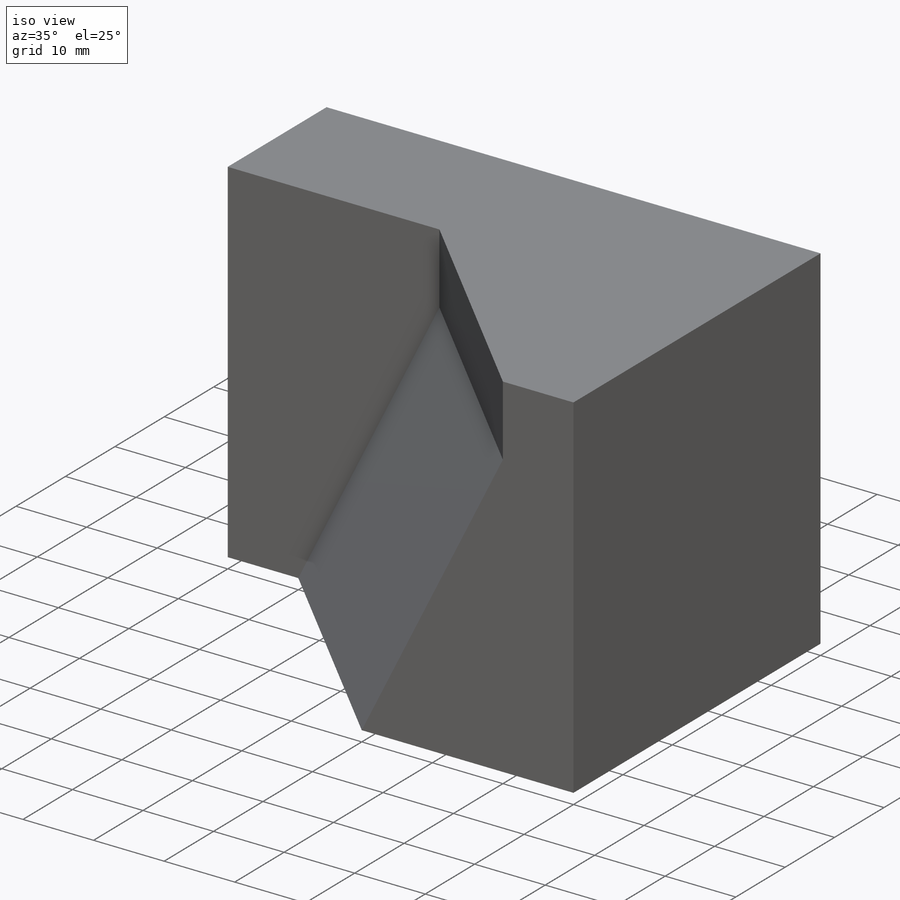
[diagram: iso view]
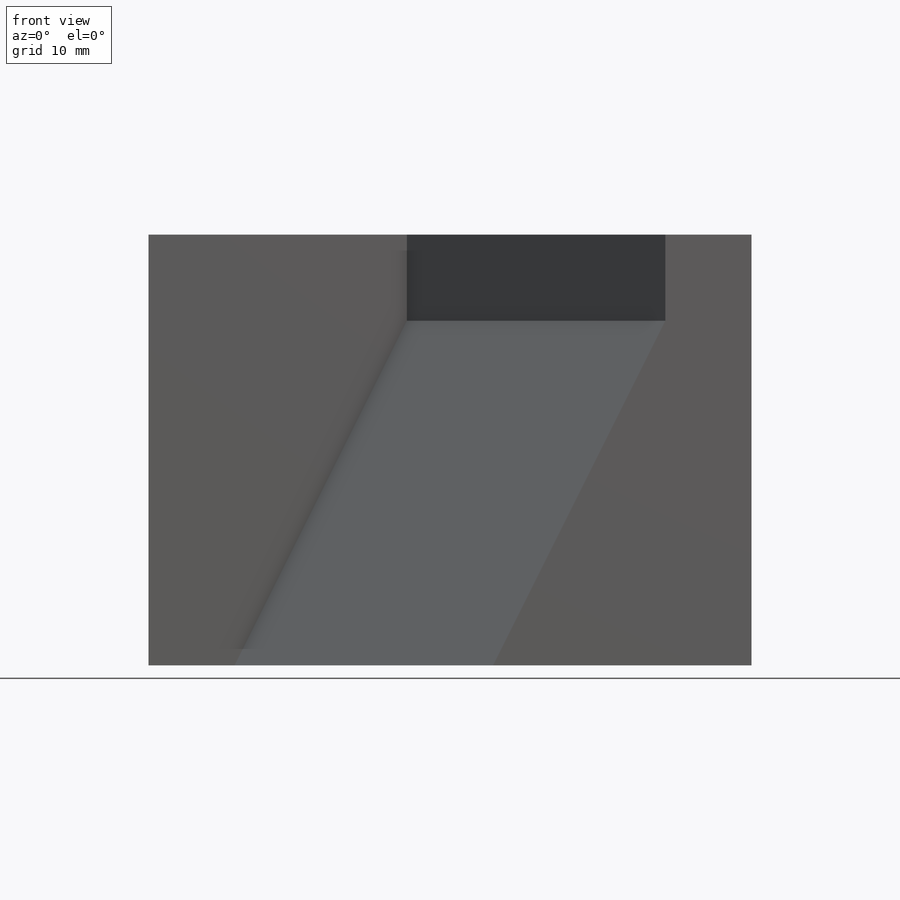
[diagram: front view]
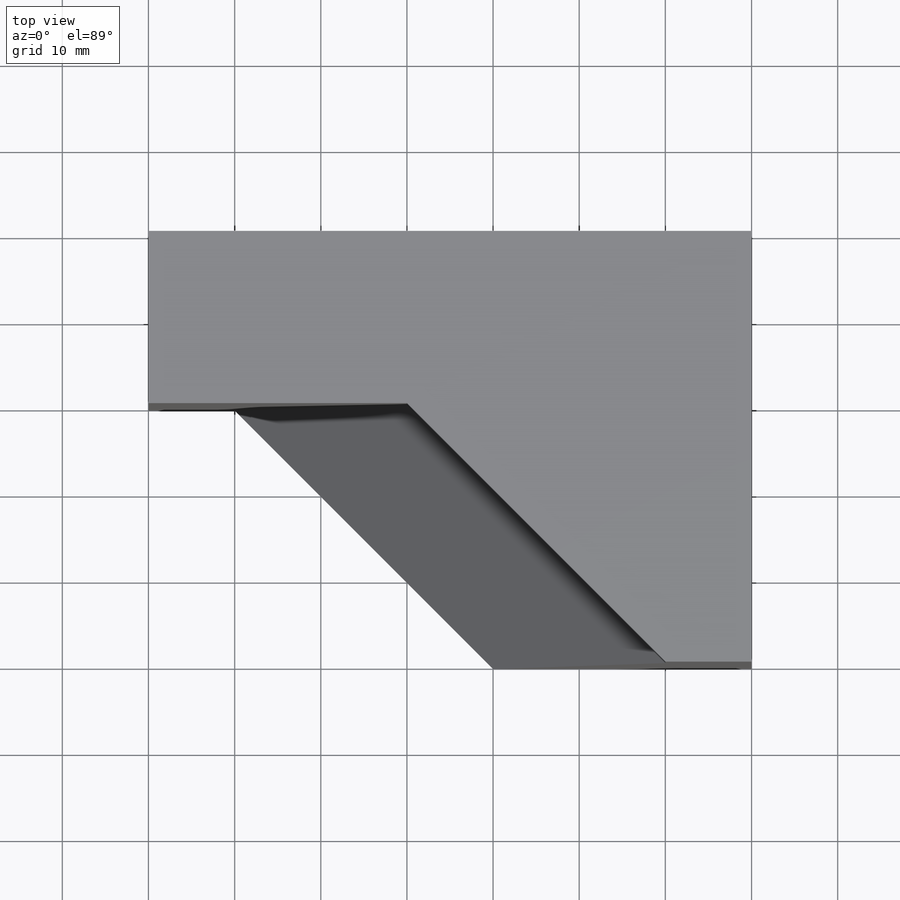
[diagram: top view]
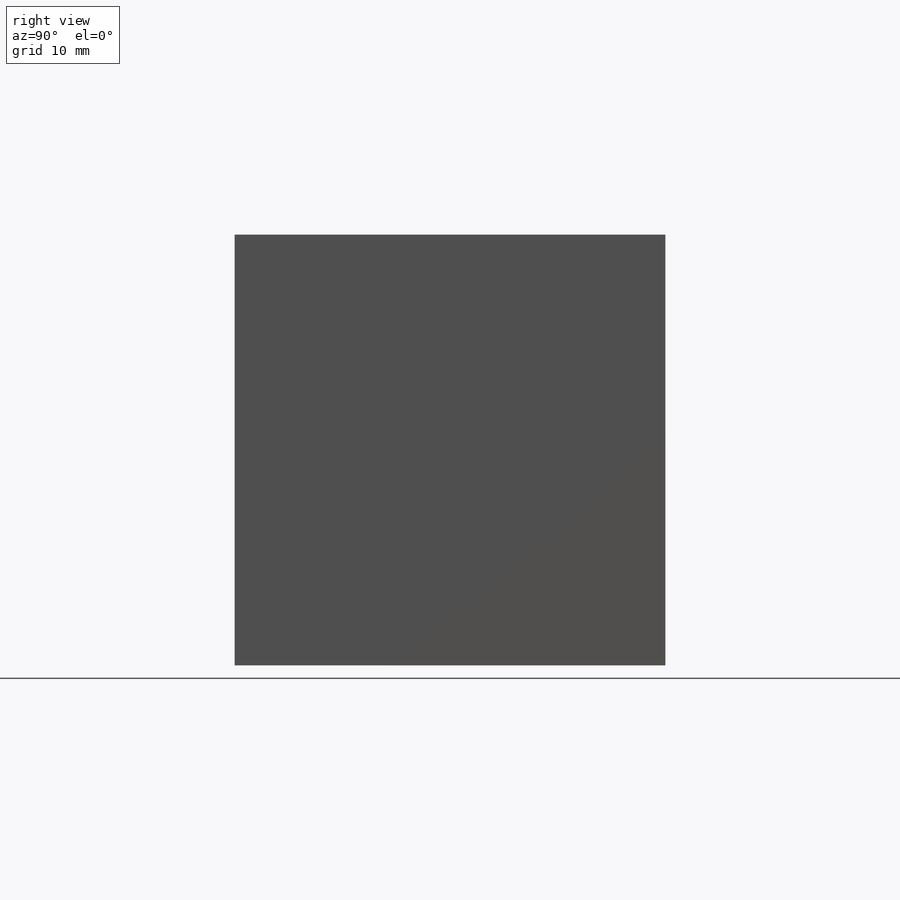
[diagram: right view]
SOLIDWORKS PART (.sldprt)
format: sldprt  version: not decoded by parser v0  size: 225,792 bytes
history: native  units: mm
features: sketch x12, cut_extrude x6, extrude x4, plane x2, material x1 (+13 scaffold rows collapsed)
feature tree (38):
  scaffold x13  (default folders/planes/origin — collapsed)
  material  "Material <not specified>"
  sketch  "Sketch1"  dims[D1=70.0mm D2=50.0mm]
  extrude  "Boss-Extrude1"  Depth=50mm
  sketch  "Sketch2"  dims[D1=30.0mm D2=10.0mm D3=30.0mm]
  cut_extrude  "Cut-Extrude1"  Depth=50mm
  sketch  "Sketch3"  dims[D1=20.0mm]
  cut_extrude  "Cut-Extrude2"  Depth=40mm
  plane  "Plane1"
  sketch  "Sketch7"  dims[D1=10.0mm D2=0.0mm]
  sketch  "Sketch8"  dims[D1=10.0mm]
  plane  "Plane2"
  sketch  "Sketch9"
  cut_extrude  "Cut-Extrude4"  Depth=14mm
  sketch  "Sketch10"
  extrude  "Boss-Extrude6"  Depth=14mm
  sketch  "Sketch11"
  extrude  "Boss-Extrude7"  Depth=14mm
  sketch  "Sketch12"
  cut_extrude  "Cut-Extrude5"  Depth=14mm
  sketch  "Sketch13"
  cut_extrude  "Cut-Extrude6"  Depth=14mm
  sketch  "Sketch14"
  cut_extrude  "Cut-Extrude7"  Depth=14mm
  sketch  "Sketch15"
  extrude  "Boss-Extrude8"  Depth=14mm
decode coverage: 15 of 22 modeling features carry decoded parameters
note: suppression state not decoded; provenance and decode notes live in map.json
